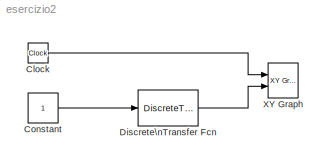
MODEL esercizio2
KIND model
BLOCK [Clock] Clock
  SID = 1
BLOCK [Constant] Constant
  SID = 2
BLOCK [DiscreteTransferFcn] Discrete\nTransfer Fcn
  Denominator = [1 0.7 0.12 -0.09]
  InputPortMap = u0
  Numerator = [3 -0.1 -0.43]
  Ports = [1, 1]
  SID = 3
  SampleTime = 1
BLOCK [Reference] XY Graph  REF=simulink/Sinks/XY Graph
  Ports = [2]
  SID = 4
  SourceBlock = simulink/Sinks/XY Graph
  SourceType = XY scope.
  st = 1
  xmax = 15
  xmin = 0
  ymax = 3.5
  ymin = -0.5
LINE Clock:1 -> XY Graph:1
LINE Constant:1 -> Discrete\nTransfer Fcn:1
LINE Discrete\nTransfer Fcn:1 -> XY Graph:2
